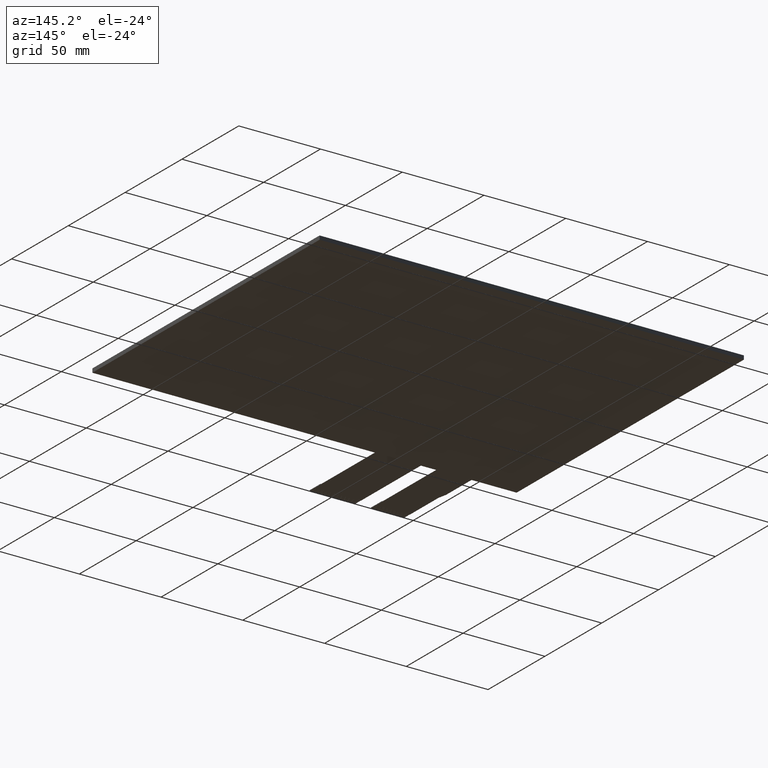
[diagram: clean part render]
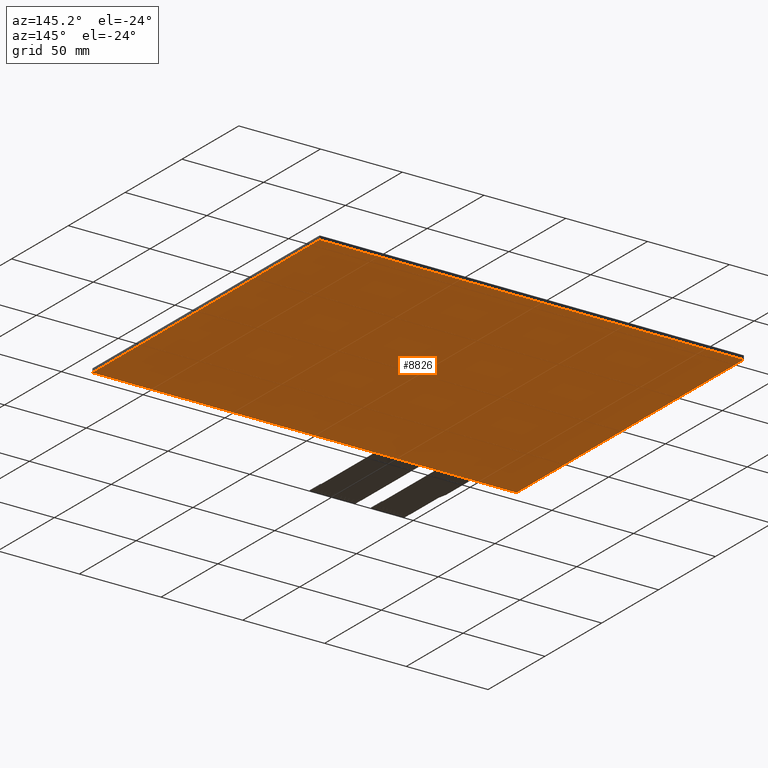
[diagram: same view with one face highlighted and labeled with its STEP entity id]
A machine part, auxiliary view. The second image highlights one B-rep face of the part: STEP entity #8826.
In plain terms, the highlighted planar face has unit normal (0, 0, -1).
Its self-contained STEP definition (entity closure, byte-faithful):
#490=PLANE('',#9280);
#912=FACE_OUTER_BOUND('',#1338,.T.);
#1338=EDGE_LOOP('',(#8395,#8396,#8397,#8398));
#2568=LINE('',#13876,#3804);
#2570=LINE('',#13880,#3806);
#2572=LINE('',#13884,#3808);
#2574=LINE('',#13887,#3810);
#3804=VECTOR('',#11370,10.);
#3806=VECTOR('',#11374,10.);
#3808=VECTOR('',#11378,10.);
#3810=VECTOR('',#11382,10.);
#4651=VERTEX_POINT('',#13873);
#4652=VERTEX_POINT('',#13875);
#4653=VERTEX_POINT('',#13879);
#4654=VERTEX_POINT('',#13883);
#5896=EDGE_CURVE('',#4652,#4651,#2568,.T.);
#5898=EDGE_CURVE('',#4653,#4652,#2570,.T.);
#5900=EDGE_CURVE('',#4654,#4653,#2572,.T.);
#5902=EDGE_CURVE('',#4651,#4654,#2574,.T.);
#8395=ORIENTED_EDGE('',*,*,#5902,.T.);
#8396=ORIENTED_EDGE('',*,*,#5900,.T.);
#8397=ORIENTED_EDGE('',*,*,#5898,.T.);
#8398=ORIENTED_EDGE('',*,*,#5896,.T.);
#8826=ADVANCED_FACE('',(#912),#490,.T.);
#9280=AXIS2_PLACEMENT_3D('',#13889,#11385,#11386);
#11370=DIRECTION('',(-3.5527136788005E-16,1.,0.));
#11374=DIRECTION('',(-1.,-2.05359172185E-16,0.));
#11378=DIRECTION('',(8.88178419700125E-17,-1.,0.));
#11382=DIRECTION('',(1.,0.,0.));
#11385=DIRECTION('center_axis',(0.,0.,-1.));
#11386=DIRECTION('ref_axis',(-1.,0.,0.));
#13873=CARTESIAN_POINT('',(-130.1,97.65,-2.35));
#13875=CARTESIAN_POINT('',(-130.1,-102.35,-2.35));
#13876=CARTESIAN_POINT('',(-130.1,97.6500000000001,-2.35));
#13879=CARTESIAN_POINT('',(129.4,-102.35,-2.35));
#13880=CARTESIAN_POINT('',(-130.1,-102.35,-2.35));
#13883=CARTESIAN_POINT('',(129.4,97.65,-2.35));
#13884=CARTESIAN_POINT('',(129.4,-102.35,-2.35));
#13887=CARTESIAN_POINT('',(129.4,97.65,-2.35));
#13889=CARTESIAN_POINT('Origin',(-0.349999999999984,-2.34999999999999,-2.35));